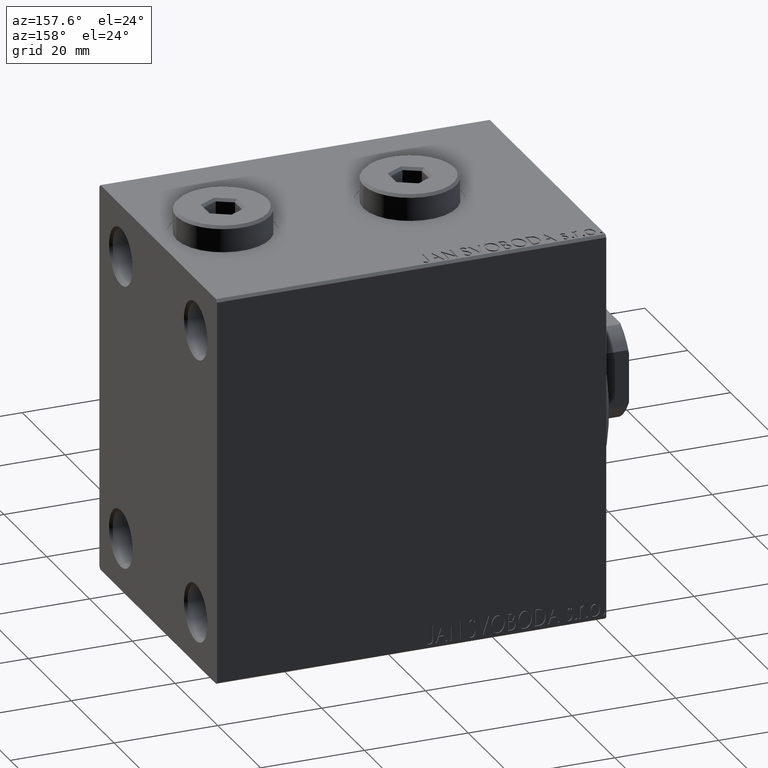
[diagram: clean part render]
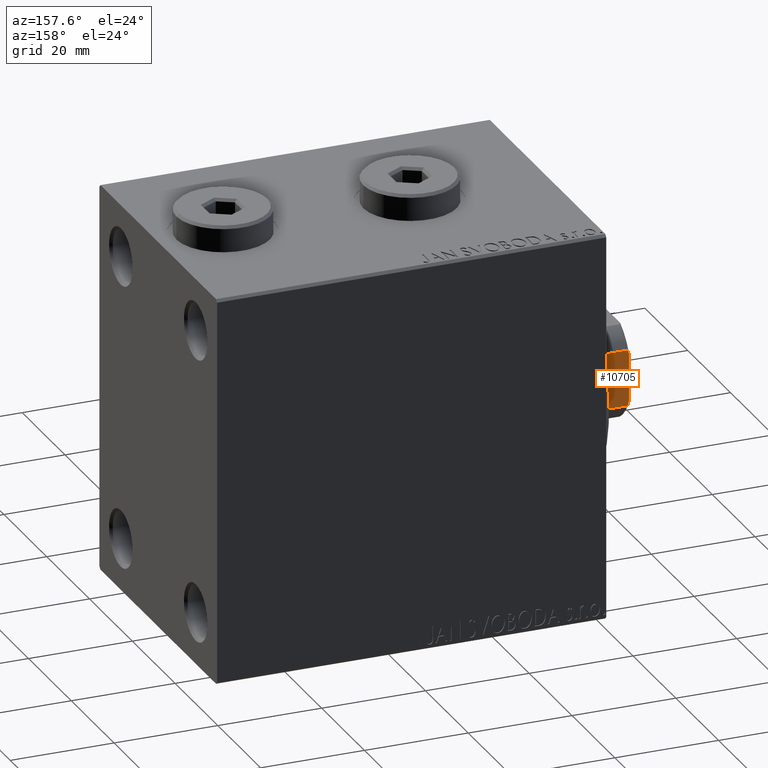
[diagram: same view with one face highlighted and labeled with its STEP entity id]
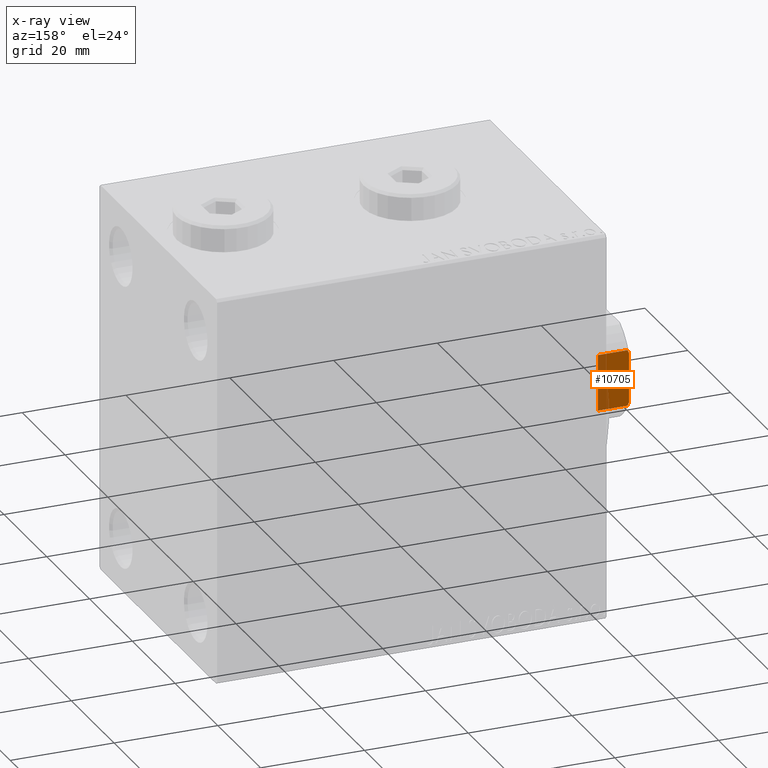
[diagram: x-ray of the same camera — body ghosted, the highlighted face saturated]
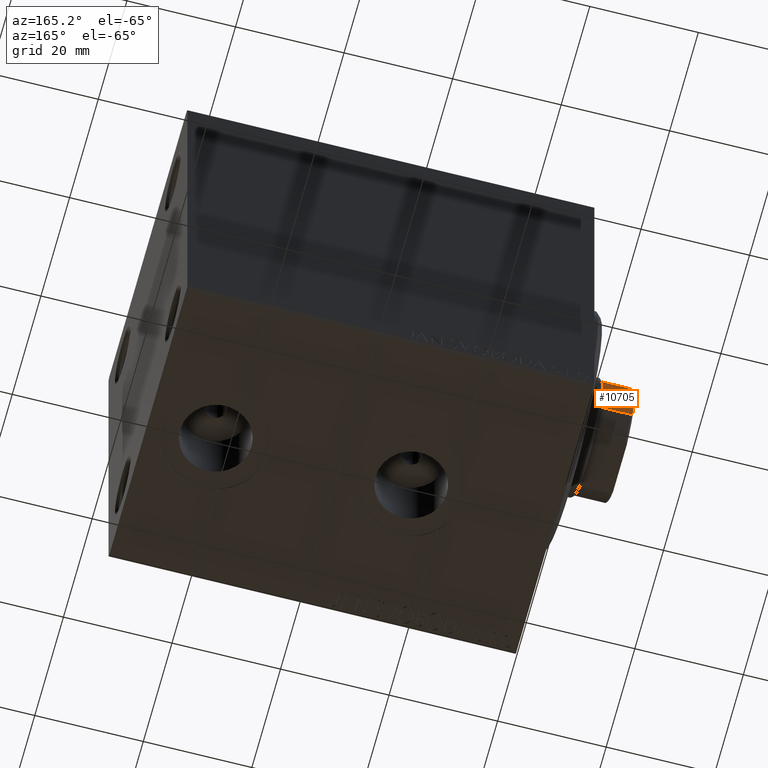
[diagram: same view with one face highlighted and labeled with its STEP entity id]
A machine part, auxiliary view. The second image highlights one B-rep face of the part: STEP entity #10705.
The next image is the same camera in x-ray: the body ghosted, the highlighted face saturated — about 31% of this face is hidden behind the body in this view.
A second angle (auxiliary view) of the same face is appended — the face is thin or edge-on in the first view.
In plain terms, the highlighted planar face has unit normal (0, -1, 0).
Its self-contained STEP definition (entity closure, byte-faithful):
#773 = CARTESIAN_POINT ( 'NONE',  ( 4.800000000000012257, 8.999999999999998224, 77.00000000000001421 ) ) ;
#1736 = VERTEX_POINT ( 'NONE', #10055 ) ;
#2886 = DIRECTION ( 'NONE',  ( -0.000000000000000000, -0.000000000000000000, 1.000000000000000000 ) ) ;
#2938 = VECTOR ( 'NONE', #21731, 1000.000000000000000 ) ;
#4675 = DIRECTION ( 'NONE',  ( -1.000000000000000000, -0.000000000000000000, -0.000000000000000000 ) ) ;
#6295 = ORIENTED_EDGE ( 'NONE', *, *, #35779, .T. ) ;
#7929 = CARTESIAN_POINT ( 'NONE',  ( 5.207299490555477917, 8.999999999999998224, 76.80354495430069051 ) ) ;
#9625 = VECTOR ( 'NONE', #20792, 1000.000000000000000 ) ;
#10055 = CARTESIAN_POINT ( 'NONE',  ( 5.408326913195989682, 8.999999999999998224, 76.70000000000001705 ) ) ;
#10705 = ADVANCED_FACE ( 'NONE', ( #19596 ), #26059, .F. ) ;
#12251 = VERTEX_POINT ( 'NONE', #32709 ) ;
#14263 = CARTESIAN_POINT ( 'NONE',  ( 5.408326913195989682, 8.999999999999998224, 71.00000000000002842 ) ) ;
#14822 = LINE ( 'NONE', #28657, #2938 ) ;
#15349 = VERTEX_POINT ( 'NONE', #31772 ) ;
#15690 = DIRECTION ( 'NONE',  ( 0.000000000000000000, -0.000000000000000000, -1.000000000000000000 ) ) ;
#16940 = CARTESIAN_POINT ( 'NONE',  ( -5.408326913195988794, 8.999999999999998224, -0.001000000000001000089 ) ) ;
#17163 = B_SPLINE_CURVE_WITH_KNOTS ( 'NONE', 3,
 ( #18565, #32186, #31963, #32629 ),
 .UNSPECIFIED., .F., .F.,
 ( 4, 4 ),
 ( 0.000000000000000000, 0.0006782784334759402959 ),
 .UNSPECIFIED. ) ;
#18540 = VERTEX_POINT ( 'NONE', #30736 ) ;
#18565 = CARTESIAN_POINT ( 'NONE',  ( -5.408326913195988794, 8.999999999999998224, 76.70000000000000284 ) ) ;
#19596 = FACE_OUTER_BOUND ( 'NONE', #45496, .T. ) ;
#20356 = EDGE_CURVE ( 'NONE', #18540, #1736, #30585, .T. ) ;
#20792 = DIRECTION ( 'NONE',  ( -0.000000000000000000, -0.000000000000000000, 1.000000000000000000 ) ) ;
#21023 = CARTESIAN_POINT ( 'NONE',  ( 5.408326913195989682, 8.999999999999998224, -0.001000000000001000089 ) ) ;
#21525 = CARTESIAN_POINT ( 'NONE',  ( 5.408326913195989682, 8.999999999999998224, 76.70000000000001705 ) ) ;
#21731 = DIRECTION ( 'NONE',  ( -1.000000000000000000, -0.000000000000000000, -0.000000000000000000 ) ) ;
#22094 = ORIENTED_EDGE ( 'NONE', *, *, #32399, .F. ) ;
#22595 = DIRECTION ( 'NONE',  ( 0.000000000000000000, -1.000000000000000000, 0.000000000000000000 ) ) ;
#23020 = EDGE_CURVE ( 'NONE', #37532, #40846, #39243, .T. ) ;
#23172 = ORIENTED_EDGE ( 'NONE', *, *, #23020, .T. ) ;
#23624 = LINE ( 'NONE', #16940, #28087 ) ;
#24935 = LINE ( 'NONE', #21023, #9625 ) ;
#26059 = PLANE ( 'NONE',  #28160 ) ;
#27308 = ORIENTED_EDGE ( 'NONE', *, *, #20356, .T. ) ;
#28087 = VECTOR ( 'NONE', #2886, 1000.000000000000000 ) ;
#28160 = AXIS2_PLACEMENT_3D ( 'NONE', #40113, #22595, #15690 ) ;
#28657 = CARTESIAN_POINT ( 'NONE',  ( -9.000000000000001776, 8.999999999999998224, 77.00000000000001421 ) ) ;
#28906 = CARTESIAN_POINT ( 'NONE',  ( 5.004607318780310621, 8.999999999999998224, 76.90371420292693472 ) ) ;
#30585 = B_SPLINE_CURVE_WITH_KNOTS ( 'NONE', 3,
 ( #773, #28906, #7929, #21525 ),
 .UNSPECIFIED., .F., .F.,
 ( 4, 4 ),
 ( 0.000000000000000000, 0.0006782784334759163350 ),
 .UNSPECIFIED. ) ;
#30611 = VECTOR ( 'NONE', #4675, 1000.000000000000000 ) ;
#30736 = CARTESIAN_POINT ( 'NONE',  ( 4.800000000000012257, 8.999999999999998224, 77.00000000000001421 ) ) ;
#31772 = CARTESIAN_POINT ( 'NONE',  ( -4.799999999999990941, 8.999999999999998224, 77.00000000000001421 ) ) ;
#31963 = CARTESIAN_POINT ( 'NONE',  ( -5.004607318780300851, 8.999999999999998224, 76.90371420292692051 ) ) ;
#32186 = CARTESIAN_POINT ( 'NONE',  ( -5.207299490555470811, 8.999999999999998224, 76.80354495430067630 ) ) ;
#32399 = EDGE_CURVE ( 'NONE', #18540, #15349, #14822, .T. ) ;
#32629 = CARTESIAN_POINT ( 'NONE',  ( -4.799999999999990941, 8.999999999999998224, 77.00000000000001421 ) ) ;
#32709 = CARTESIAN_POINT ( 'NONE',  ( -5.408326913195988794, 8.999999999999998224, 76.70000000000000284 ) ) ;
#34307 = EDGE_CURVE ( 'NONE', #37532, #1736, #24935, .T. ) ;
#34397 = ORIENTED_EDGE ( 'NONE', *, *, #38990, .T. ) ;
#35399 = CARTESIAN_POINT ( 'NONE',  ( -5.408326913195986130, 8.999999999999998224, 71.00000000000002842 ) ) ;
#35779 = EDGE_CURVE ( 'NONE', #40846, #12251, #23624, .T. ) ;
#36248 = CARTESIAN_POINT ( 'NONE',  ( -9.000000000000001776, 8.999999999999998224, 71.00000000000001421 ) ) ;
#36531 = ORIENTED_EDGE ( 'NONE', *, *, #34307, .F. ) ;
#37532 = VERTEX_POINT ( 'NONE', #14263 ) ;
#38990 = EDGE_CURVE ( 'NONE', #12251, #15349, #17163, .T. ) ;
#39243 = LINE ( 'NONE', #36248, #30611 ) ;
#40113 = CARTESIAN_POINT ( 'NONE',  ( -9.000000000000001776, 8.999999999999998224, 77.00000000000001421 ) ) ;
#40846 = VERTEX_POINT ( 'NONE', #35399 ) ;
#45496 = EDGE_LOOP ( 'NONE', ( #22094, #27308, #36531, #23172, #6295, #34397 ) ) ;